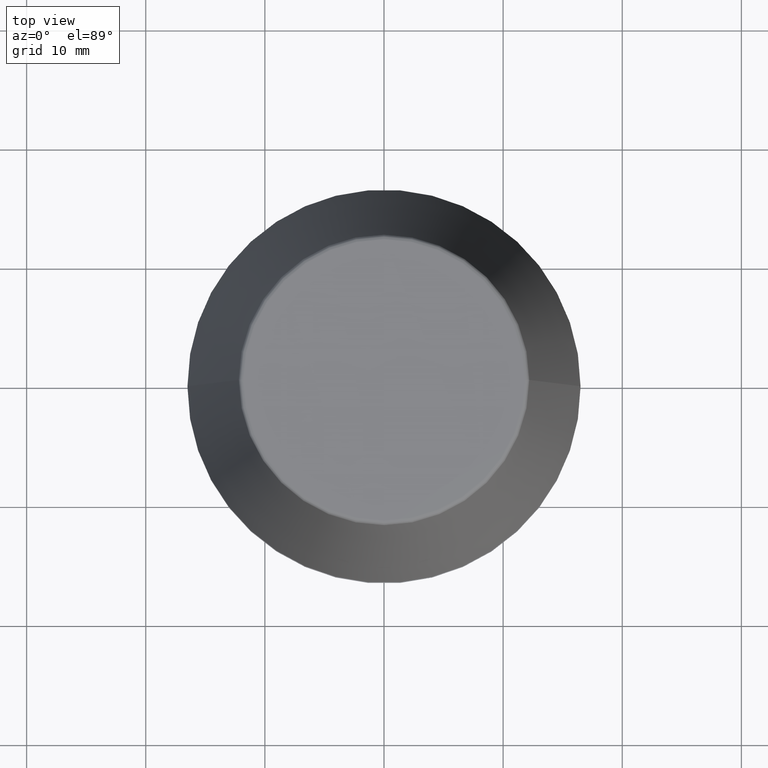
[diagram: clean part render]
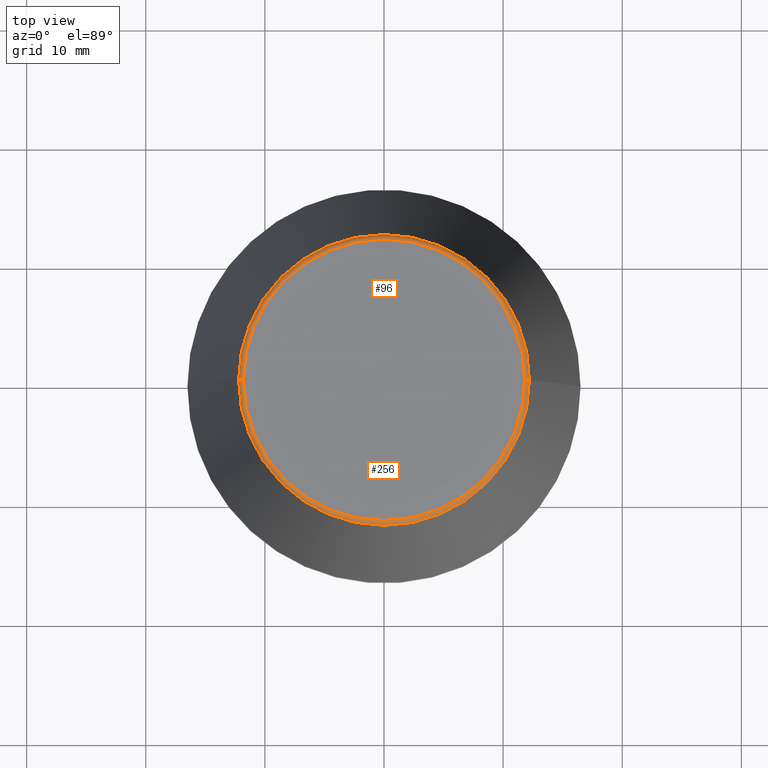
[diagram: same view with one multi-face feature highlighted, each face labeled with its STEP entity id]
A machine part, top view. The highlighted faces form ONE feature: a constant-radius fillet chain: 2 tangent blend faces with common blend radius 0.4 mm. The faces share edges in the B-rep.
Their STEP definitions:
[1] entity #96 (Torus):
#5 = CIRCLE ( 'NONE', #334, 0.4000000000000045200 ) ;
#23 = AXIS2_PLACEMENT_3D ( 'NONE', #43, #219, #164 ) ;
#24 = EDGE_CURVE ( 'NONE', #113, #263, #151, .T. ) ;
#30 = DIRECTION ( 'NONE',  ( 1.000000000000000000, 0.0000000000000000000, 0.0000000000000000000 ) ) ;
#31 = DIRECTION ( 'NONE',  ( 0.0000000000000000000, 0.0000000000000000000, -1.000000000000000000 ) ) ;
#37 = CIRCLE ( 'NONE', #23, 11.80989888411031400 ) ;
#43 = CARTESIAN_POINT ( 'NONE',  ( 0.0000000000000000000, 0.0000000000000000000, 40.00000000000000700 ) ) ;
#45 = DIRECTION ( 'NONE',  ( -0.0000000000000000000, -0.0000000000000000000, 1.000000000000000000 ) ) ;
#48 = AXIS2_PLACEMENT_3D ( 'NONE', #309, #210, #30 ) ;
#52 = EDGE_CURVE ( 'NONE', #221, #160, #5, .T. ) ;
#67 = DIRECTION ( 'NONE',  ( 1.224646799147353200E-016, 1.000000000000000000, 0.0000000000000000000 ) ) ;
#73 = CARTESIAN_POINT ( 'NONE',  ( 12.20600611160694300, 1.757755848304969800E-015, 39.65566924038402900 ) ) ;
#75 = DIRECTION ( 'NONE',  ( 1.000000000000000000, 0.0000000000000000000, 0.0000000000000000000 ) ) ;
#94 = CARTESIAN_POINT ( 'NONE',  ( -11.80989888411031400, 1.446295486667959300E-015, 39.60000000000000100 ) ) ;
#96 = ADVANCED_FACE ( 'NONE', ( #169 ), #98, .T. ) ;
#98 = TOROIDAL_SURFACE ( 'NONE', #48, 11.80989888411031400, 0.4000000000000026900 ) ;
#113 = VERTEX_POINT ( 'NONE', #354 ) ;
#121 = DIRECTION ( 'NONE',  ( -1.000000000000000000, 1.224646799147352500E-016, 0.0000000000000000000 ) ) ;
#145 = CARTESIAN_POINT ( 'NONE',  ( -11.80989888411031400, 1.470550059081603400E-015, 40.00000000000000700 ) ) ;
#151 = CIRCLE ( 'NONE', #307, 0.4000000000000028000 ) ;
#152 = DIRECTION ( 'NONE',  ( 0.0000000000000000000, -1.000000000000000000, 0.0000000000000000000 ) ) ;
#156 = CARTESIAN_POINT ( 'NONE',  ( 11.80989888411031400, 0.0000000000000000000, 39.60000000000000100 ) ) ;
#160 = VERTEX_POINT ( 'NONE', #329 ) ;
#162 = CIRCLE ( 'NONE', #172, 12.20600611160694300 ) ;
#164 = DIRECTION ( 'NONE',  ( 1.000000000000000000, 0.0000000000000000000, 0.0000000000000000000 ) ) ;
#169 = FACE_OUTER_BOUND ( 'NONE', #175, .T. ) ;
#172 = AXIS2_PLACEMENT_3D ( 'NONE', #187, #45, #75 ) ;
#175 = EDGE_LOOP ( 'NONE', ( #208, #198, #211, #180 ) ) ;
#180 = ORIENTED_EDGE ( 'NONE', *, *, #52, .F. ) ;
#187 = CARTESIAN_POINT ( 'NONE',  ( 0.0000000000000000000, 0.0000000000000000000, 39.65566924038402900 ) ) ;
#198 = ORIENTED_EDGE ( 'NONE', *, *, #24, .T. ) ;
#207 = EDGE_CURVE ( 'NONE', #160, #263, #37, .T. ) ;
#208 = ORIENTED_EDGE ( 'NONE', *, *, #254, .T. ) ;
#210 = DIRECTION ( 'NONE',  ( -0.0000000000000000000, -0.0000000000000000000, 1.000000000000000000 ) ) ;
#211 = ORIENTED_EDGE ( 'NONE', *, *, #207, .F. ) ;
#219 = DIRECTION ( 'NONE',  ( -0.0000000000000000000, -0.0000000000000000000, 1.000000000000000000 ) ) ;
#221 = VERTEX_POINT ( 'NONE', #73 ) ;
#254 = EDGE_CURVE ( 'NONE', #221, #113, #162, .T. ) ;
#263 = VERTEX_POINT ( 'NONE', #145 ) ;
#307 = AXIS2_PLACEMENT_3D ( 'NONE', #94, #67, #121 ) ;
#309 = CARTESIAN_POINT ( 'NONE',  ( 0.0000000000000000000, 0.0000000000000000000, 39.60000000000000100 ) ) ;
#329 = CARTESIAN_POINT ( 'NONE',  ( 11.80989888411031400, 0.0000000000000000000, 40.00000000000000700 ) ) ;
#334 = AXIS2_PLACEMENT_3D ( 'NONE', #156, #152, #31 ) ;
#354 = CARTESIAN_POINT ( 'NONE',  ( -12.20600611160694300, 0.0000000000000000000, 39.65566924038402900 ) ) ;
[2] entity #256 (Torus):
#5 = CIRCLE ( 'NONE', #334, 0.4000000000000045200 ) ;
#24 = EDGE_CURVE ( 'NONE', #113, #263, #151, .T. ) ;
#31 = DIRECTION ( 'NONE',  ( 0.0000000000000000000, 0.0000000000000000000, -1.000000000000000000 ) ) ;
#50 = FACE_OUTER_BOUND ( 'NONE', #335, .T. ) ;
#52 = EDGE_CURVE ( 'NONE', #221, #160, #5, .T. ) ;
#54 = DIRECTION ( 'NONE',  ( -0.0000000000000000000, -0.0000000000000000000, 1.000000000000000000 ) ) ;
#64 = DIRECTION ( 'NONE',  ( 1.000000000000000000, 0.0000000000000000000, 0.0000000000000000000 ) ) ;
#67 = DIRECTION ( 'NONE',  ( 1.224646799147353200E-016, 1.000000000000000000, 0.0000000000000000000 ) ) ;
#73 = CARTESIAN_POINT ( 'NONE',  ( 12.20600611160694300, 1.757755848304969800E-015, 39.65566924038402900 ) ) ;
#76 = CARTESIAN_POINT ( 'NONE',  ( 0.0000000000000000000, 0.0000000000000000000, 39.60000000000000100 ) ) ;
#92 = EDGE_CURVE ( 'NONE', #263, #160, #379, .T. ) ;
#94 = CARTESIAN_POINT ( 'NONE',  ( -11.80989888411031400, 1.446295486667959300E-015, 39.60000000000000100 ) ) ;
#113 = VERTEX_POINT ( 'NONE', #354 ) ;
#121 = DIRECTION ( 'NONE',  ( -1.000000000000000000, 1.224646799147352500E-016, 0.0000000000000000000 ) ) ;
#145 = CARTESIAN_POINT ( 'NONE',  ( -11.80989888411031400, 1.470550059081603400E-015, 40.00000000000000700 ) ) ;
#151 = CIRCLE ( 'NONE', #307, 0.4000000000000028000 ) ;
#152 = DIRECTION ( 'NONE',  ( 0.0000000000000000000, -1.000000000000000000, 0.0000000000000000000 ) ) ;
#156 = CARTESIAN_POINT ( 'NONE',  ( 11.80989888411031400, 0.0000000000000000000, 39.60000000000000100 ) ) ;
#160 = VERTEX_POINT ( 'NONE', #329 ) ;
#194 = DIRECTION ( 'NONE',  ( 1.000000000000000000, 0.0000000000000000000, 0.0000000000000000000 ) ) ;
#221 = VERTEX_POINT ( 'NONE', #73 ) ;
#223 = ORIENTED_EDGE ( 'NONE', *, *, #24, .F. ) ;
#226 = AXIS2_PLACEMENT_3D ( 'NONE', #356, #243, #64 ) ;
#243 = DIRECTION ( 'NONE',  ( -0.0000000000000000000, -0.0000000000000000000, 1.000000000000000000 ) ) ;
#251 = CIRCLE ( 'NONE', #340, 12.20600611160694300 ) ;
#256 = ADVANCED_FACE ( 'NONE', ( #50 ), #325, .T. ) ;
#258 = ORIENTED_EDGE ( 'NONE', *, *, #92, .F. ) ;
#262 = CARTESIAN_POINT ( 'NONE',  ( 0.0000000000000000000, 0.0000000000000000000, 39.65566924038402900 ) ) ;
#263 = VERTEX_POINT ( 'NONE', #145 ) ;
#270 = EDGE_CURVE ( 'NONE', #113, #221, #251, .T. ) ;
#280 = DIRECTION ( 'NONE',  ( 1.000000000000000000, 0.0000000000000000000, 0.0000000000000000000 ) ) ;
#307 = AXIS2_PLACEMENT_3D ( 'NONE', #94, #67, #121 ) ;
#325 = TOROIDAL_SURFACE ( 'NONE', #328, 11.80989888411031400, 0.4000000000000026900 ) ;
#328 = AXIS2_PLACEMENT_3D ( 'NONE', #76, #366, #194 ) ;
#329 = CARTESIAN_POINT ( 'NONE',  ( 11.80989888411031400, 0.0000000000000000000, 40.00000000000000700 ) ) ;
#334 = AXIS2_PLACEMENT_3D ( 'NONE', #156, #152, #31 ) ;
#335 = EDGE_LOOP ( 'NONE', ( #223, #375, #341, #258 ) ) ;
#340 = AXIS2_PLACEMENT_3D ( 'NONE', #262, #54, #280 ) ;
#341 = ORIENTED_EDGE ( 'NONE', *, *, #52, .T. ) ;
#354 = CARTESIAN_POINT ( 'NONE',  ( -12.20600611160694300, 0.0000000000000000000, 39.65566924038402900 ) ) ;
#356 = CARTESIAN_POINT ( 'NONE',  ( 0.0000000000000000000, 0.0000000000000000000, 40.00000000000000700 ) ) ;
#366 = DIRECTION ( 'NONE',  ( -0.0000000000000000000, -0.0000000000000000000, 1.000000000000000000 ) ) ;
#375 = ORIENTED_EDGE ( 'NONE', *, *, #270, .T. ) ;
#379 = CIRCLE ( 'NONE', #226, 11.80989888411031400 ) ;